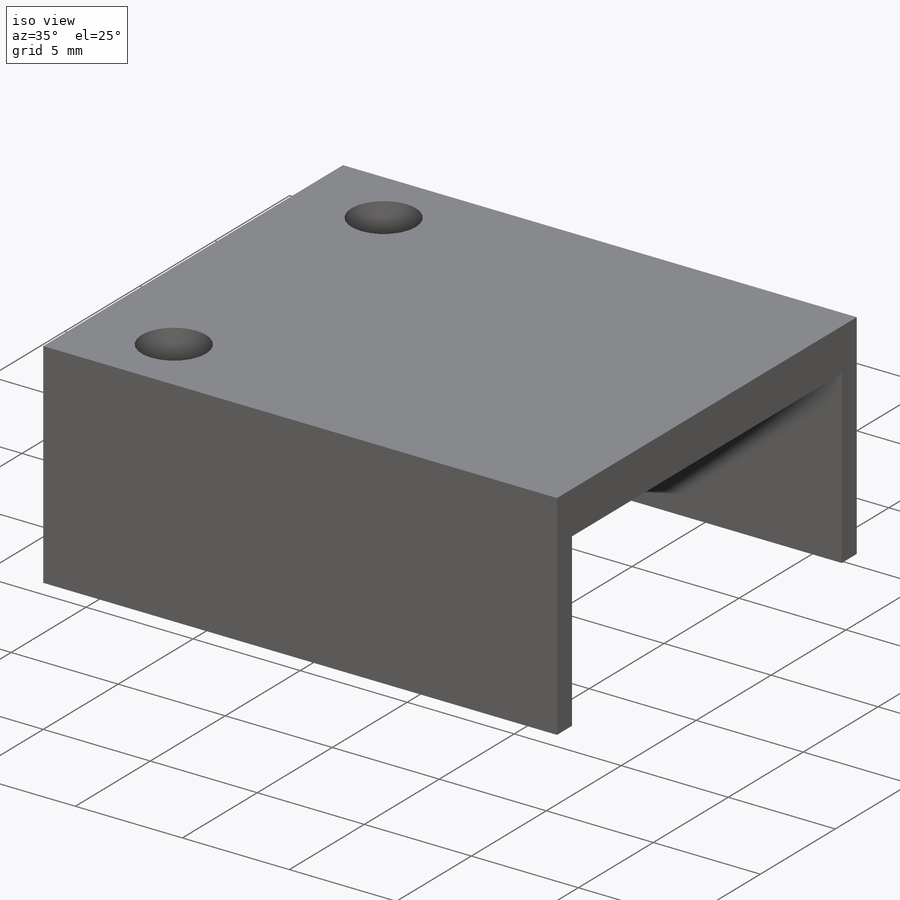
[diagram: iso view]
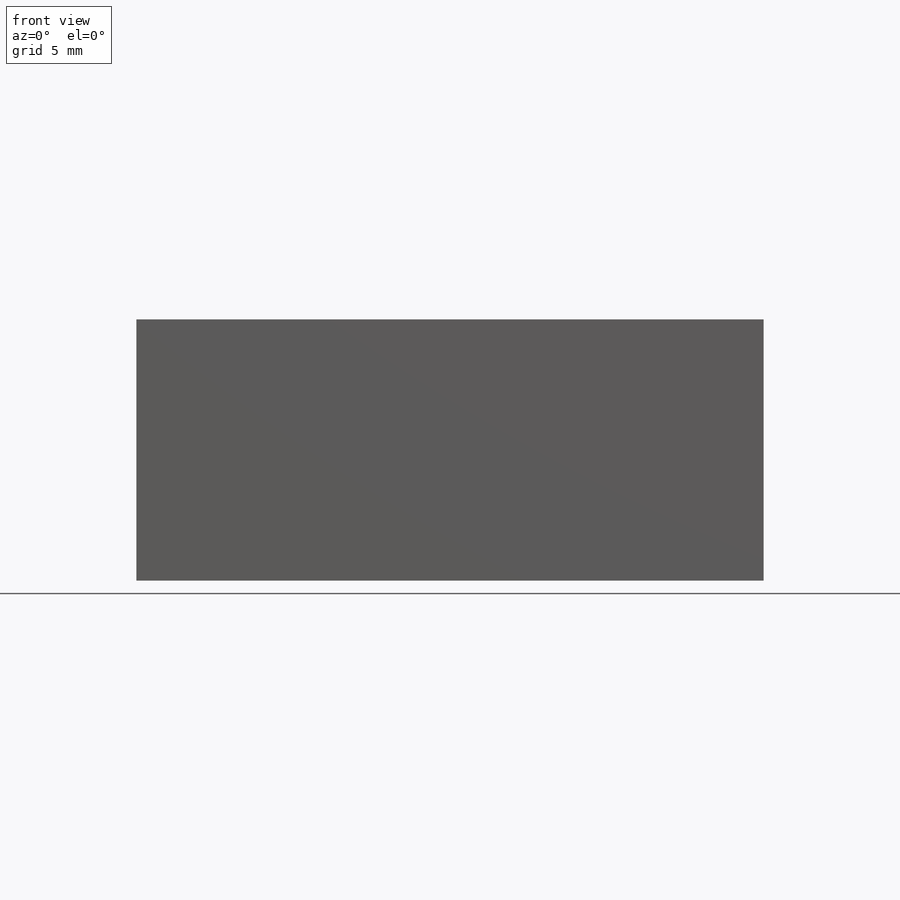
[diagram: front view]
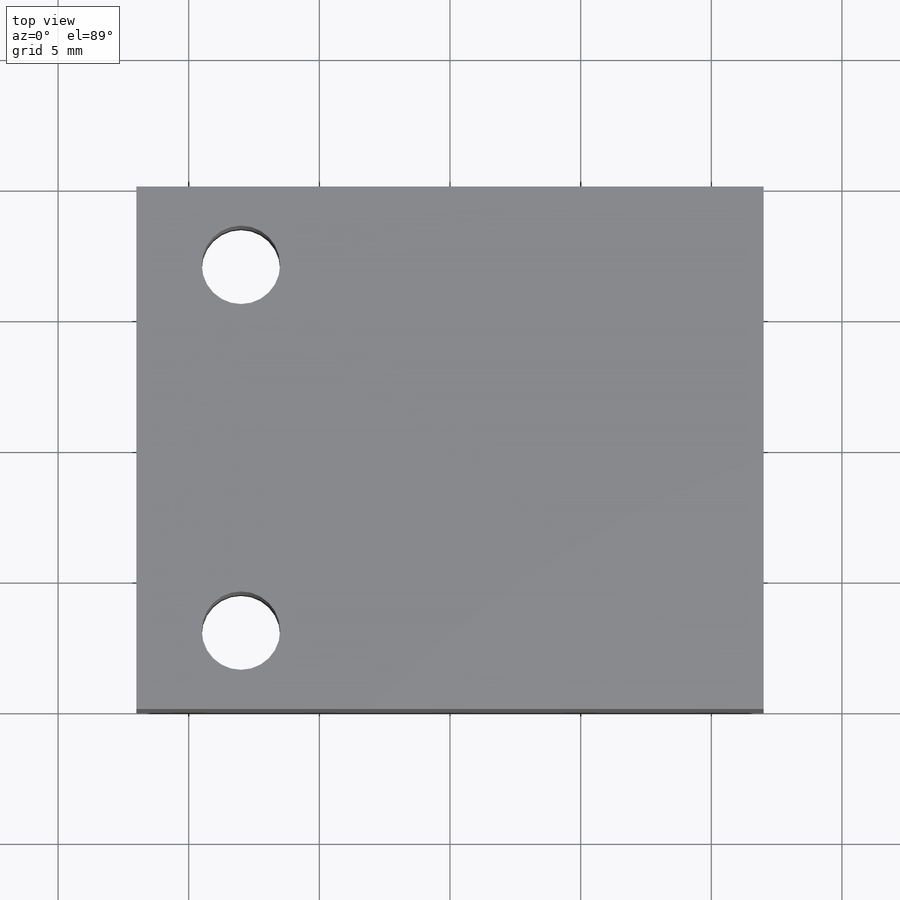
[diagram: top view]
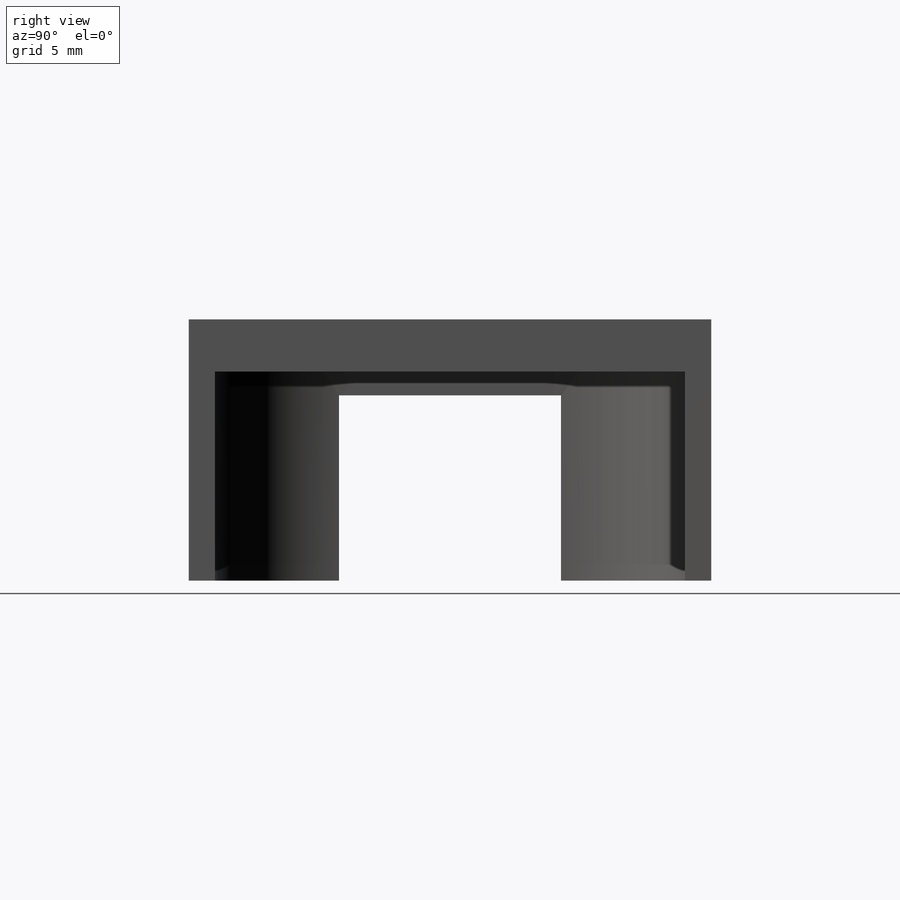
[diagram: right view]
SOLIDWORKS PART (.sldprt)
format: sldprt  version: not decoded by parser v0  size: 341,504 bytes
history: native  units: mm
features: sketch x5, plane x3, cut_extrude x3, extrude x2, material x1, fillet x1 (+10 scaffold rows collapsed)
feature tree (25):
  scaffold x10  (default folders/planes/origin — collapsed)
  material  "Matériau <non spécifié>"
  plane  "Plan de face"
  plane  "Plan de dessus"
  plane  "Plan de droite"
  sketch  "Esquisse1"  dims[D1=10.0mm D2=22.0mm]
  extrude  "Boss.-Extru.1"  Depth=20mm
  sketch  "Esquisse2"  dims[D1=2.0mm D2=~2.353624mm D3=7.0mm]
  cut_extrude  "Enlèv. mat.-Extru.1"  Depth=20mm
  sketch  "Esquisse4"  dims[D1=9.0mm D2=2.0mm]
  cut_extrude  "Enlèv. mat.-Extru.6"  Depth=18mm
  sketch  "Esquisse5"
  extrude  "Boss.-Extru.2"  Depth=2mm
  sketch  "Esquisse6"  dims[D1=8.5mm]
  cut_extrude  "Enlèv. mat.-Extru.7"  Depth=8mm
  fillet  "Congé1"  Radius=5mm
decode coverage: 10 of 11 modeling features carry decoded parameters
note: ~ marks probable driven/reference dimensions
note: suppression state not decoded; provenance and decode notes live in map.json
